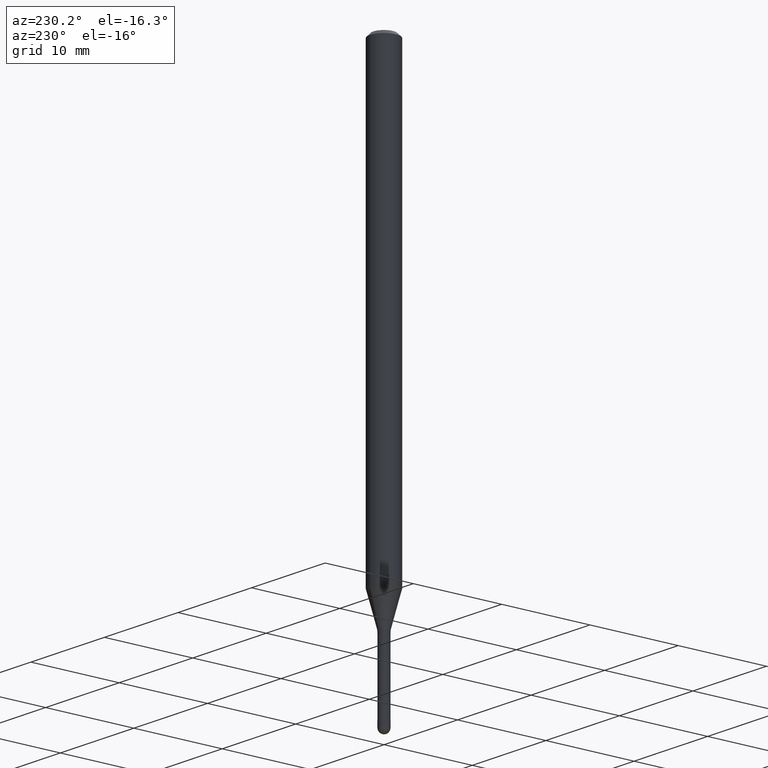
[diagram: clean part render]
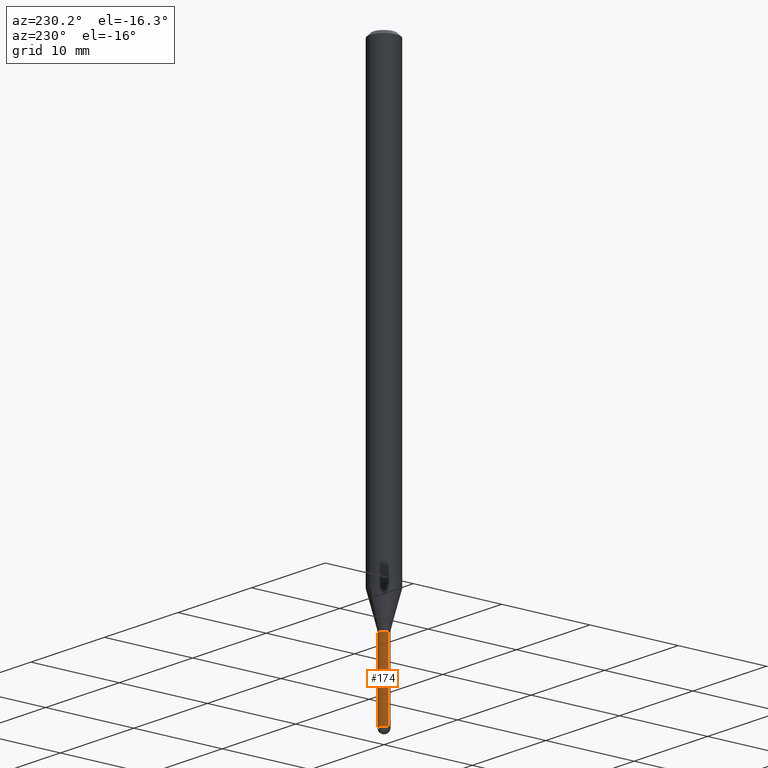
[diagram: same view with one face highlighted and labeled with its STEP entity id]
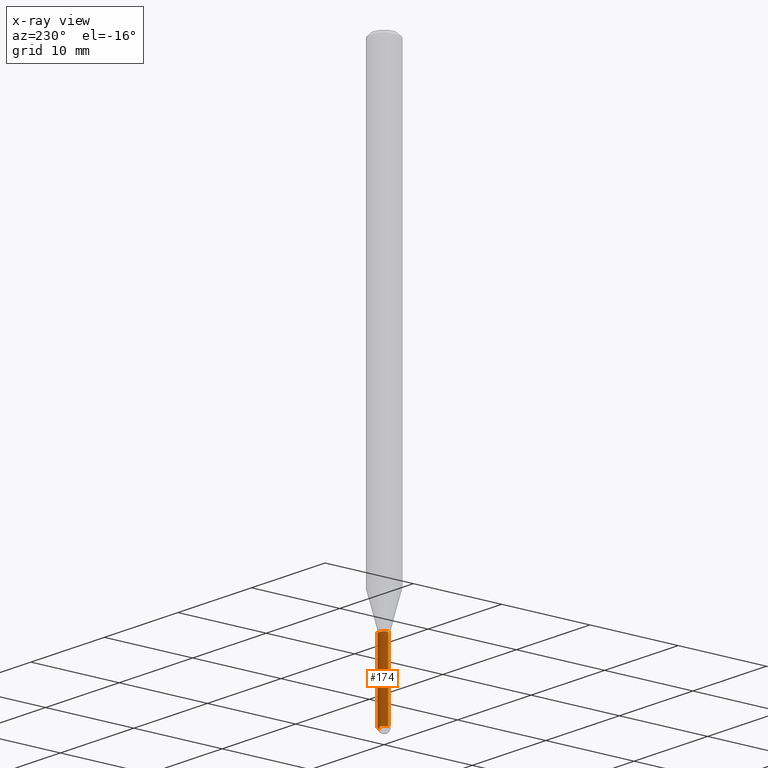
[diagram: x-ray of the same camera — body ghosted, the highlighted face saturated]
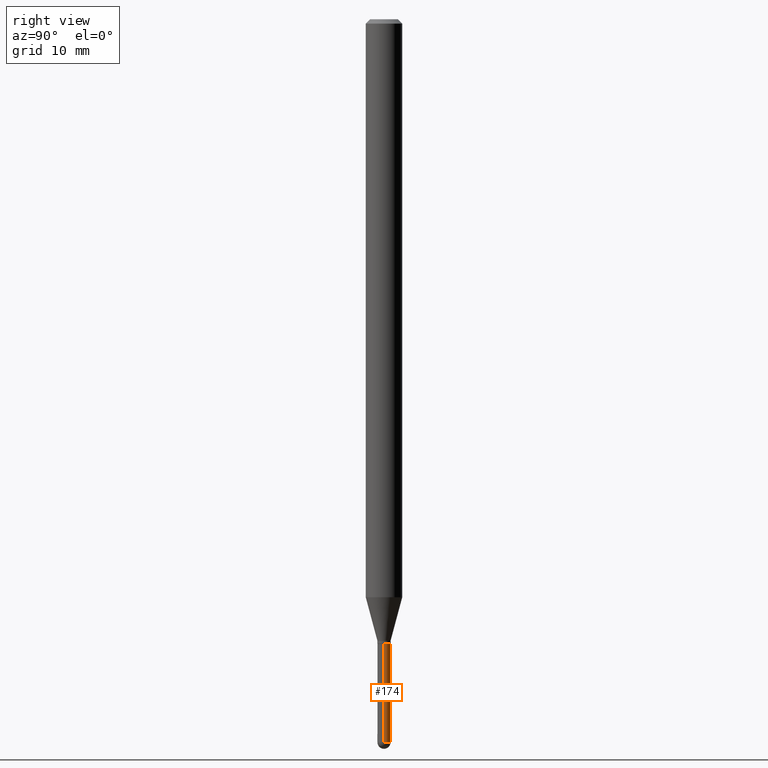
[diagram: same view with one face highlighted and labeled with its STEP entity id]
A machine part, auxiliary view. The second image highlights one B-rep face of the part: STEP entity #174.
The next image is the same camera in x-ray: the body ghosted, the highlighted face saturated — about 0% of this face is hidden behind the body in this view.
A second angle (right view) of the same face is appended — the face is thin or edge-on in the first view.
In plain terms, the highlighted cylindrical surface (edge-blend (fillet) strip) has radius 0.5715 mm, axis along (-0, 0, 1).
Its self-contained STEP definition (entity closure, byte-faithful):
#11 = ORIENTED_EDGE ( 'NONE', *, *, #189, .F. ) ;
#28 = DIRECTION ( 'NONE',  ( -2.445468806185136597E-29, 3.491481338843145583E-15, 1.000000000000000000 ) ) ;
#34 = CARTESIAN_POINT ( 'NONE',  ( -0.02249999999999999917, -7.901085425508090322E-15, -2.140000000000000124 ) ) ;
#39 = DIRECTION ( 'NONE',  ( -2.445468806185136597E-29, 3.491481338843145583E-15, 1.000000000000000000 ) ) ;
#57 = DIRECTION ( 'NONE',  ( -2.445468806185136597E-29, 3.491481338843145583E-15, 1.000000000000000000 ) ) ;
#67 = FACE_OUTER_BOUND ( 'NONE', #434, .T. ) ;
#70 = CARTESIAN_POINT ( 'NONE',  ( 5.233303245236192586E-29, -7.471770065124331886E-15, -2.140000000000000124 ) ) ;
#74 = VECTOR ( 'NONE', #414, 39.37007874015748143 ) ;
#92 = AXIS2_PLACEMENT_3D ( 'NONE', #386, #57, #424 ) ;
#110 = VERTEX_POINT ( 'NONE', #311 ) ;
#138 = CIRCLE ( 'NONE', #426, 0.02249999999999999917 ) ;
#142 = EDGE_CURVE ( 'NONE', #371, #143, #230, .T. ) ;
#143 = VERTEX_POINT ( 'NONE', #256 ) ;
#147 = DIRECTION ( 'NONE',  ( -2.445468806185136877E-29, 3.491481338843145188E-15, 1.000000000000000000 ) ) ;
#148 = ORIENTED_EDGE ( 'NONE', *, *, #287, .T. ) ;
#149 = CIRCLE ( 'NONE', #436, 0.02249999999999999570 ) ;
#151 = LINE ( 'NONE', #196, #74 ) ;
#158 = EDGE_CURVE ( 'NONE', #397, #242, #151, .T. ) ;
#174 = ADVANCED_FACE ( 'NONE', ( #67 ), #194, .T. ) ;
#185 = DIRECTION ( 'NONE',  ( 1.000000000000000000, -6.982962677686269077E-15, 0.000000000000000000 ) ) ;
#187 = ORIENTED_EDGE ( 'NONE', *, *, #279, .T. ) ;
#189 = EDGE_CURVE ( 'NONE', #143, #242, #138, .T. ) ;
#190 = CARTESIAN_POINT ( 'NONE',  ( -0.02249999999999999570, -7.901085425508090322E-15, -2.477500000000000036 ) ) ;
#194 = CYLINDRICAL_SURFACE ( 'NONE', #92, 0.02249999999999999917 ) ;
#196 = CARTESIAN_POINT ( 'NONE',  ( -0.02249999999999999917, 1.598721155460225359E-16, -1.106760395307353780E-30 ) ) ;
#199 = CARTESIAN_POINT ( 'NONE',  ( 6.058648967323676636E-29, -8.650145016983893338E-15, -2.477500000000000036 ) ) ;
#209 = ORIENTED_EDGE ( 'NONE', *, *, #142, .F. ) ;
#213 = CIRCLE ( 'NONE', #500, 0.02249999999999999570 ) ;
#230 = LINE ( 'NONE', #308, #363 ) ;
#242 = VERTEX_POINT ( 'NONE', #34 ) ;
#256 = CARTESIAN_POINT ( 'NONE',  ( 0.02249999999999999917, -7.628886725372273518E-15, -2.140000000000000124 ) ) ;
#274 = DIRECTION ( 'NONE',  ( -2.445468806185136597E-29, 3.491481338843145583E-15, 1.000000000000000000 ) ) ;
#279 = EDGE_CURVE ( 'NONE', #110, #397, #149, .T. ) ;
#287 = EDGE_CURVE ( 'NONE', #371, #110, #213, .T. ) ;
#306 = CARTESIAN_POINT ( 'NONE',  ( 0.02249999999999999570, -8.218074201302054244E-15, -2.477500000000000036 ) ) ;
#308 = CARTESIAN_POINT ( 'NONE',  ( 0.02249999999999999917, -1.571166602479409911E-16, 1.097139774554085483E-30 ) ) ;
#311 = CARTESIAN_POINT ( 'NONE',  ( 1.571166602480007720E-16, 0.02249999999999123187, -2.477500000000000036 ) ) ;
#321 = DIRECTION ( 'NONE',  ( 1.000000000000000000, -6.982962677686269866E-15, 0.000000000000000000 ) ) ;
#325 = ORIENTED_EDGE ( 'NONE', *, *, #158, .T. ) ;
#363 = VECTOR ( 'NONE', #147, 39.37007874015748143 ) ;
#371 = VERTEX_POINT ( 'NONE', #306 ) ;
#386 = CARTESIAN_POINT ( 'NONE',  ( 0.000000000000000000, 0.000000000000000000, 0.000000000000000000 ) ) ;
#397 = VERTEX_POINT ( 'NONE', #190 ) ;
#414 = DIRECTION ( 'NONE',  ( -2.445468806185136877E-29, 3.491481338843145188E-15, 1.000000000000000000 ) ) ;
#424 = DIRECTION ( 'NONE',  ( 1.000000000000000000, -6.982962677686266711E-15, 4.876176775795935793E-29 ) ) ;
#426 = AXIS2_PLACEMENT_3D ( 'NONE', #70, #28, #185 ) ;
#434 = EDGE_LOOP ( 'NONE', ( #187, #325, #11, #209, #148 ) ) ;
#436 = AXIS2_PLACEMENT_3D ( 'NONE', #199, #274, #321 ) ;
#470 = CARTESIAN_POINT ( 'NONE',  ( 6.058648967323676636E-29, -8.650145016983893338E-15, -2.477500000000000036 ) ) ;
#500 = AXIS2_PLACEMENT_3D ( 'NONE', #470, #39, #508 ) ;
#508 = DIRECTION ( 'NONE',  ( 1.000000000000000000, -6.982962677686269866E-15, 0.000000000000000000 ) ) ;